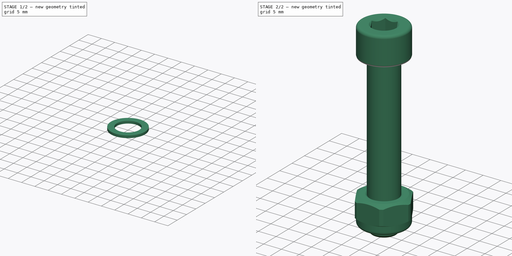
[diagram: build sequence overview — one tinted view per stage of 2, left to right]
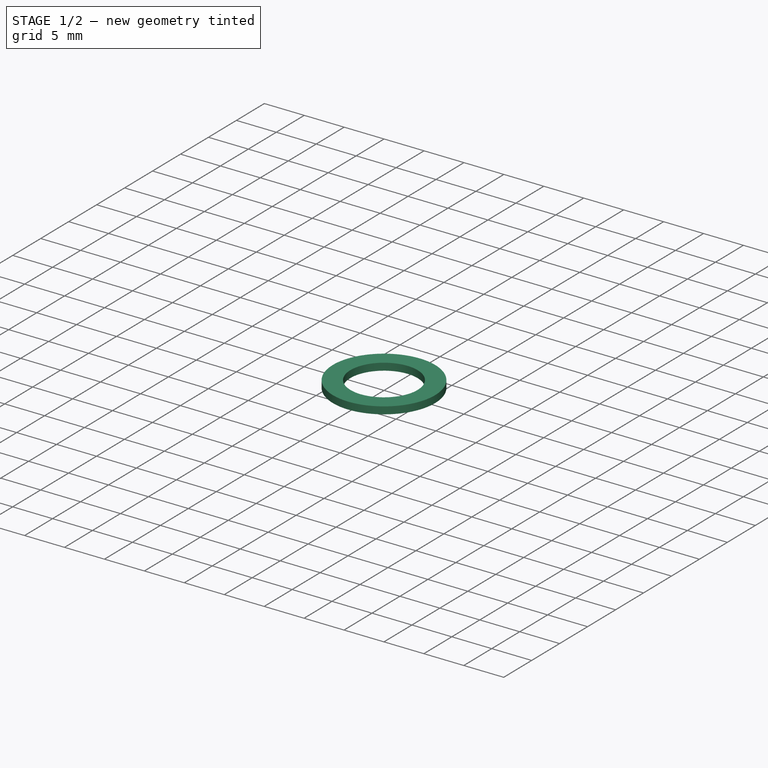
[diagram: stage 1 of 2 — iso view after this stage's code; geometry added in this stage tinted green]
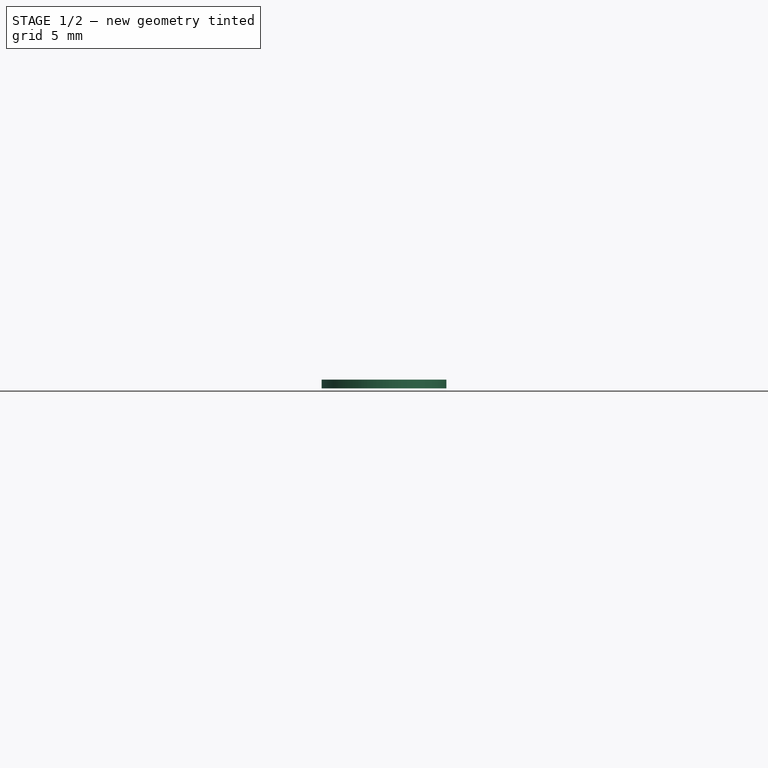
[diagram: stage 1 of 2 — front view after this stage's code; geometry added in this stage tinted green]
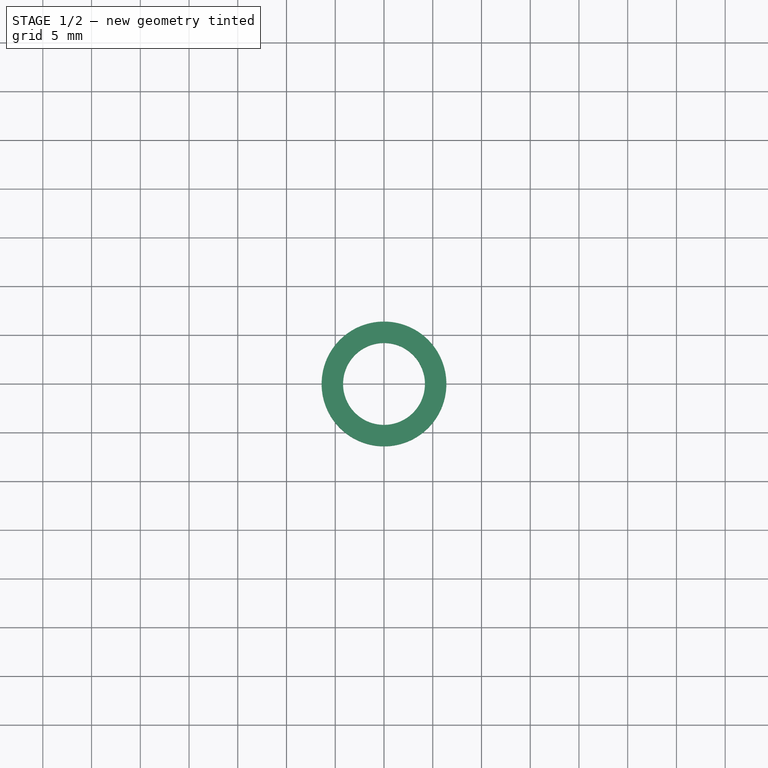
[diagram: stage 1 of 2 — top view after this stage's code; geometry added in this stage tinted green]
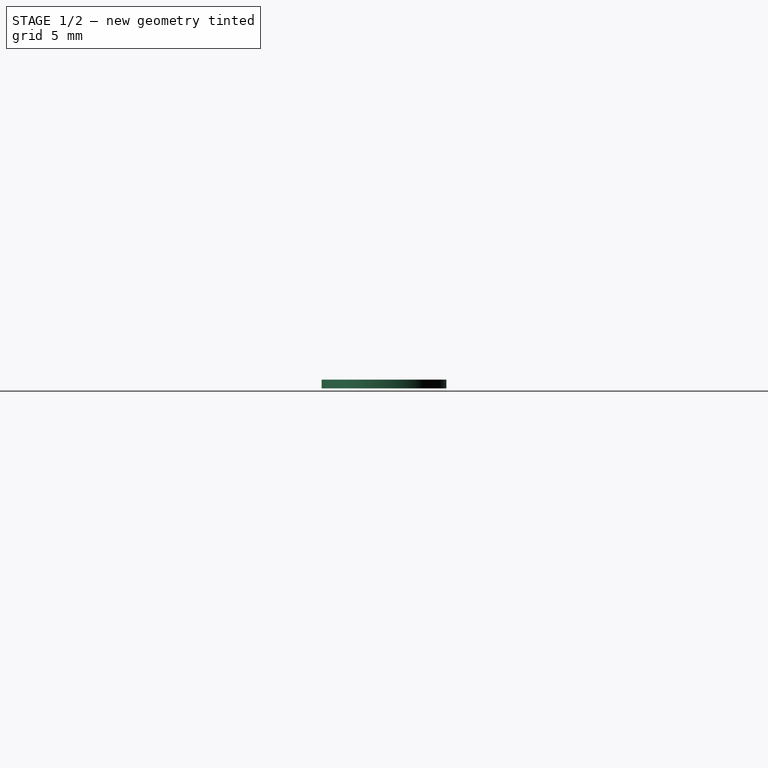
[diagram: stage 1 of 2 — right view after this stage's code; geometry added in this stage tinted green]
FCSTD DOCUMENT  (FreeCAD 0.18R16110 (Git))
Label: idler-m8-axis
License: All rights reserved
LicenseURL: http://en.wikipedia.org/wiki/All_rights_reserved
objects: Part::Feature×8, Part::FeaturePython×2, Sketcher::SketchObject×2, PartDesign::Pad×2, PartDesign::Body×2, App::Part×1
note: 18 computed .brp shape members not serialized (recipe doc carries the construction recipe); baked Part::Feature solids carry a one-line shape summary decoded from their .brp

FEATURE [Sketcher::SketchObject] Sketch
  MapMode = 5
  Support = -> [XY_Plane]
  sketch-geometry (2):
    g0: Circle CenterX=0 CenterY=0 CenterZ=0 NormalX=0 NormalY=0 NormalZ=1 AngleXU=0 Radius=6.4
    g1: Circle CenterX=0 CenterY=0 CenterZ=0 NormalX=0 NormalY=0 NormalZ=1 AngleXU=0 Radius=4.2
  constraints (4):
    c: Radius(g0) = 6.4
    c: Radius(g1) = 4.2
    c: Coincident(g1,g-1)
    c: Coincident(g0,g1)
FEATURE [PartDesign::Pad] Pad
  Length = 0.9
  Length2 = 100
  Profile = -> Sketch
  Type = 0
FEATURE [PartDesign::Body] Body  label="M8schnorrxS01"
  Group = -> [Sketch,Pad]
  Origin = -> Origin
  Placement = pos=(0,0,-8.5) rot=(0,0,1;0rad)
  Tip = -> Pad
FEATURE [Sketcher::SketchObject] Sketch001
  MapMode = 5
  Support = -> [XY_Plane001]
  sketch-geometry (2):
    g0: Circle CenterX=0 CenterY=0 CenterZ=0 NormalX=0 NormalY=0 NormalZ=1 AngleXU=0 Radius=6.4
    g1: Circle CenterX=0 CenterY=0 CenterZ=0 NormalX=0 NormalY=0 NormalZ=1 AngleXU=0 Radius=4.2
  constraints (4):
    c: Radius(g0) = 6.4
    c: Radius(g1) = 4.2
    c: Coincident(g1,g-1)
    c: Coincident(g0,g1)
FEATURE [PartDesign::Pad] Pad001
  Length = 0.9
  Length2 = 100
  Profile = -> Sketch001
  Type = 0
FEATURE [PartDesign::Body] Body008  label="M8schnorrxS002"
  Group = -> [Sketch001,Pad001]
  Origin = -> Origin001
  Placement = pos=(0,0,-24.4) rot=(0,0,1;0rad)
  Tip = -> Pad001
FEATURE [App::Part] Part  label="idler-m8-axis"
  Group = -> [Screw,Body002,Body001,Compound001,Compound002,Compound003,Body005,Body006,Body007,Nut,Body,Body008]
  Origin = -> Origin002
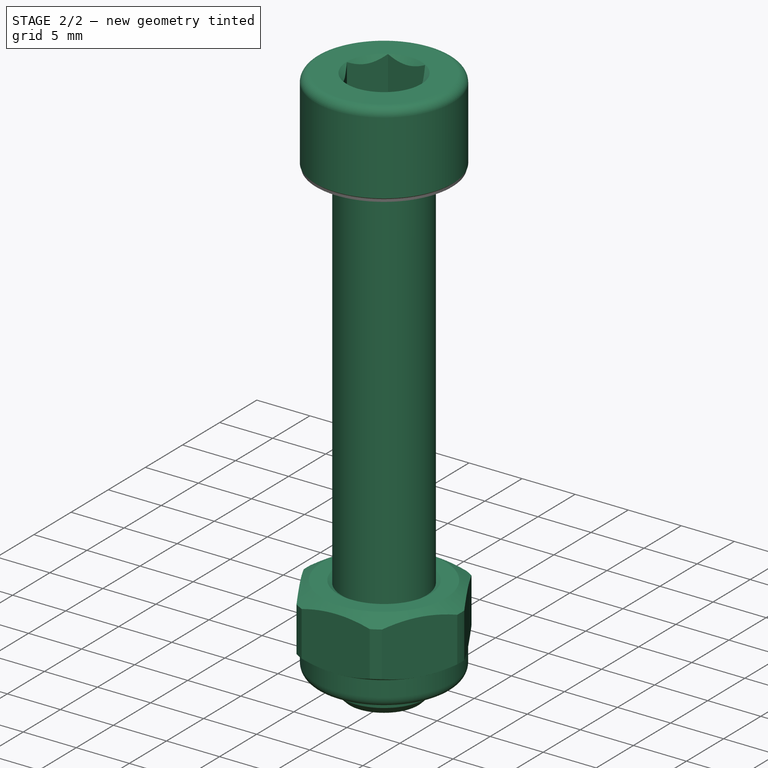
[diagram: stage 2 of 2 — iso view after this stage's code; geometry added in this stage tinted green]
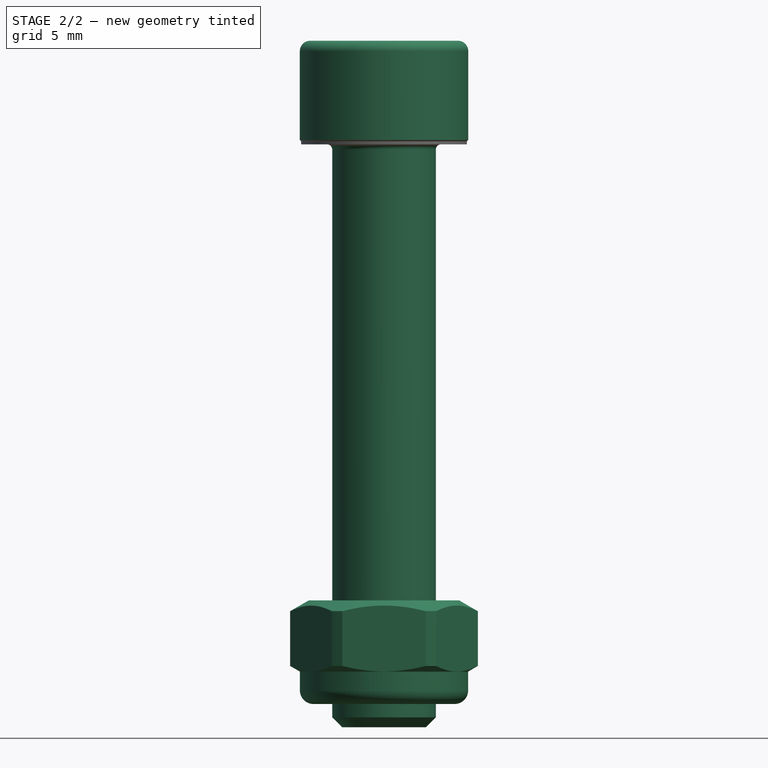
[diagram: stage 2 of 2 — front view after this stage's code; geometry added in this stage tinted green]
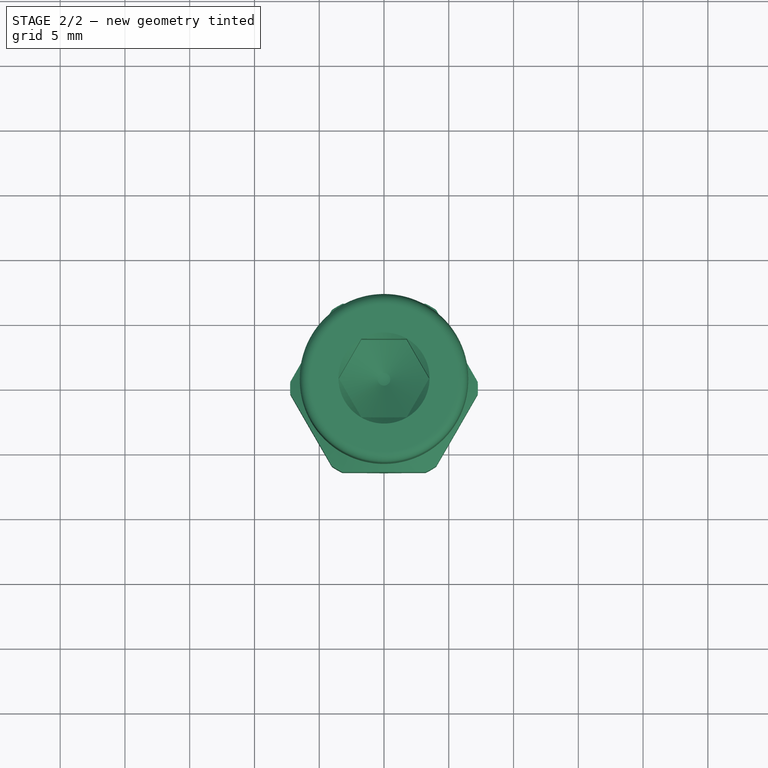
[diagram: stage 2 of 2 — top view after this stage's code; geometry added in this stage tinted green]
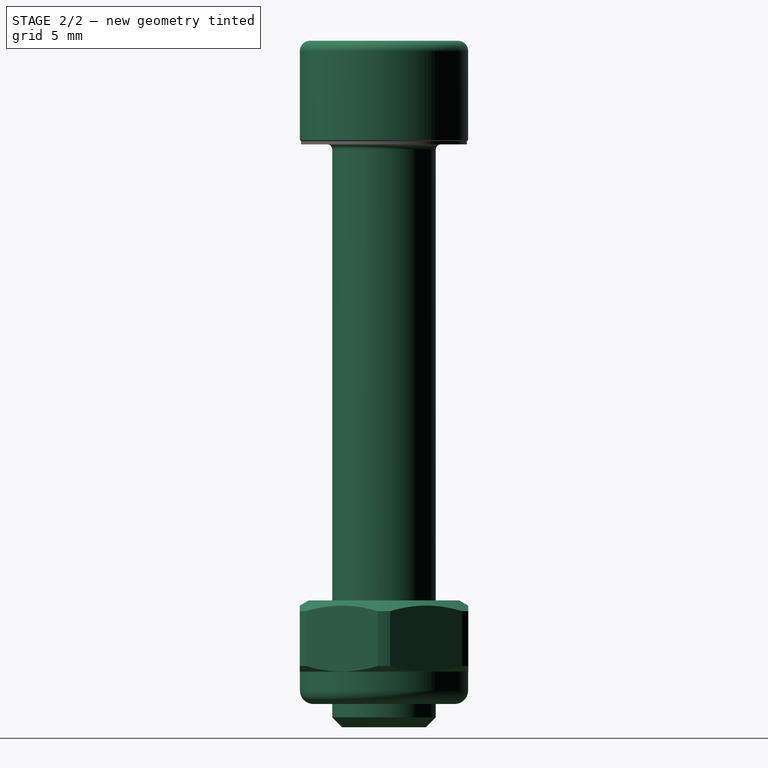
[diagram: stage 2 of 2 — right view after this stage's code; geometry added in this stage tinted green]
FEATURE [Part::FeaturePython] Screw  label="M8x45-Screw"  # Fasteners workbench fastener (typed FeaturePython)
  diameter = 8
  invert = false
  length = 9
  matchOuter = false
  offset = 0
  thread = false
  type = 15
FEATURE [Part::Feature] Body001  label="M8washer"
  Placement = pos=(0,0,-1.6) rot=(0,0,1;0rad)
  shape: bbox 16 x 16 x 1.6 mm, 4 faces (baked)
FEATURE [Part::Feature] Body002  label="M8washer001"
  Placement = pos=(0,0,-7.6) rot=(0,0,1;0rad)
  shape: bbox 16 x 16 x 1.6 mm, 4 faces (baked)
FEATURE [Part::Feature] Compound001  label="zz688-01"
  Placement = pos=(0,0,-13.5) rot=(0,0,1;0rad)
  shape: bbox 17.32 x 17.32 x 5 mm, 102 faces, 11 solids (baked)
FEATURE [Part::Feature] Compound002  label="zz688-02"
  Placement = pos=(0,0,-18.5) rot=(0,0,1;0rad)
  shape: bbox 17.32 x 17.32 x 5 mm, 102 faces, 11 solids (baked)
FEATURE [Part::Feature] Compound003  label="zz688-03"
  Placement = pos=(0,0,-23.5) rot=(0,0,1;0rad)
  shape: bbox 17.32 x 17.32 x 5 mm, 102 faces, 11 solids (baked)
FEATURE [Part::Feature] Body005  label="M8washer002"
  Placement = pos=(0,0,-26) rot=(0,0,1;0rad)
  shape: bbox 16 x 16 x 1.6 mm, 4 faces (baked)
FEATURE [Part::Feature] Body006  label="M8washer003"
  Placement = pos=(0,0,-33.6) rot=(0,0,1;0rad)
  shape: bbox 16 x 16 x 1.6 mm, 4 faces (baked)
FEATURE [Part::Feature] Body007  label="M8washer004"
  Placement = pos=(0,0,-35.2) rot=(0,0,1;0rad)
  shape: bbox 16 x 16 x 1.6 mm, 4 faces (baked)
FEATURE [Part::FeaturePython] Nut  label="M8-Nut"  # Fasteners workbench fastener (typed FeaturePython)
  Placement = pos=(0,0,-35.2) rot=(0,1,0;3.14159rad)
  diameter = 6
  invert = false
  matchOuter = false
  offset = 0
  thread = false
  type = 2
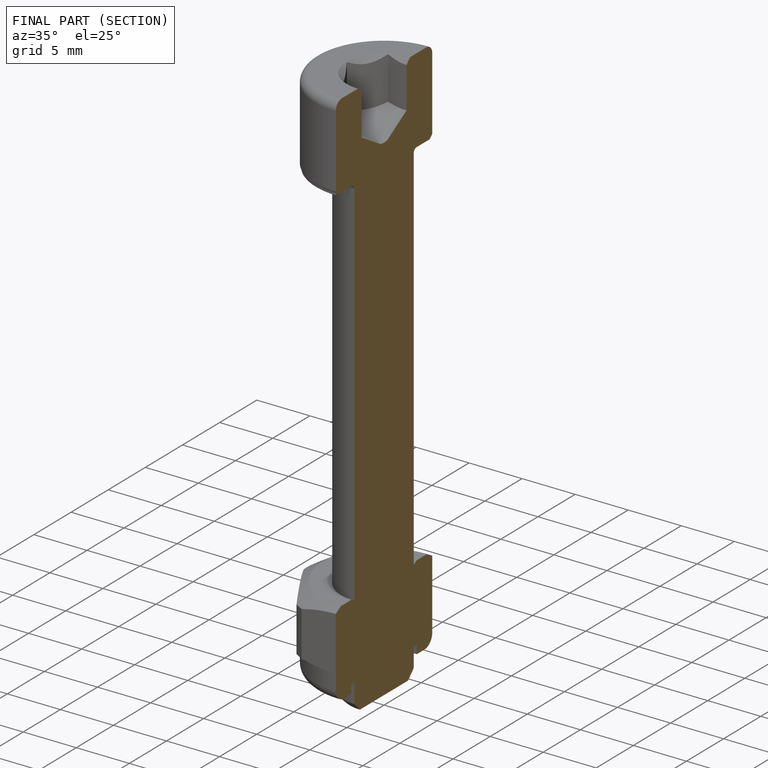
[diagram: finished part — half-section view (interior)]
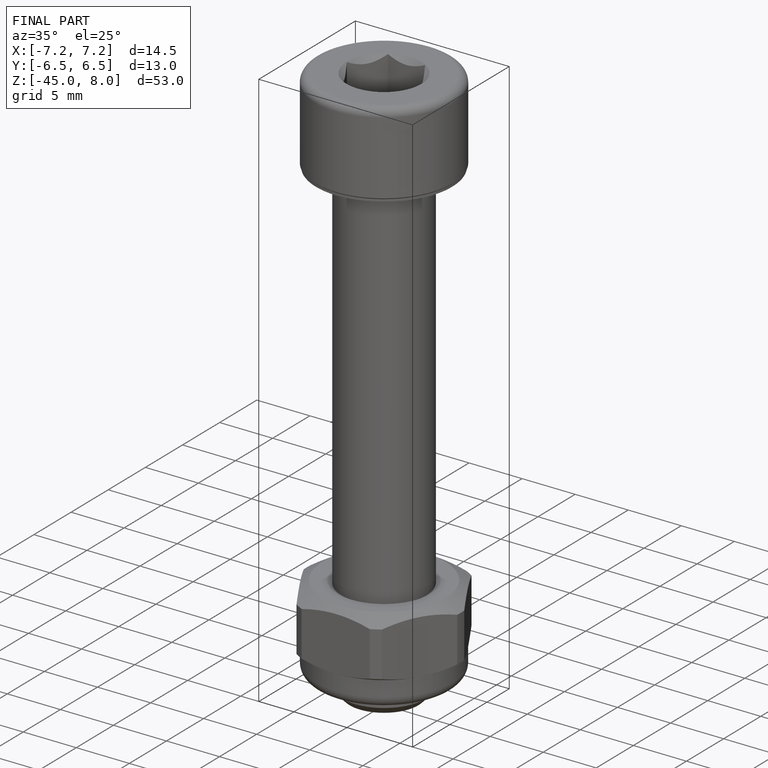
[diagram: finished part — iso view with bounding-box wireframe]
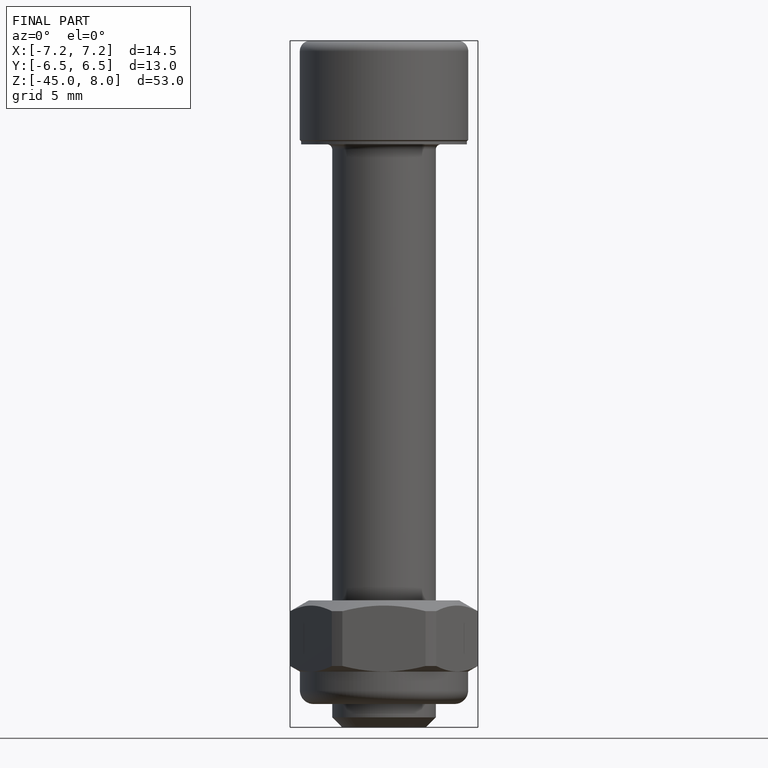
[diagram: finished part — front view with bounding-box wireframe]
